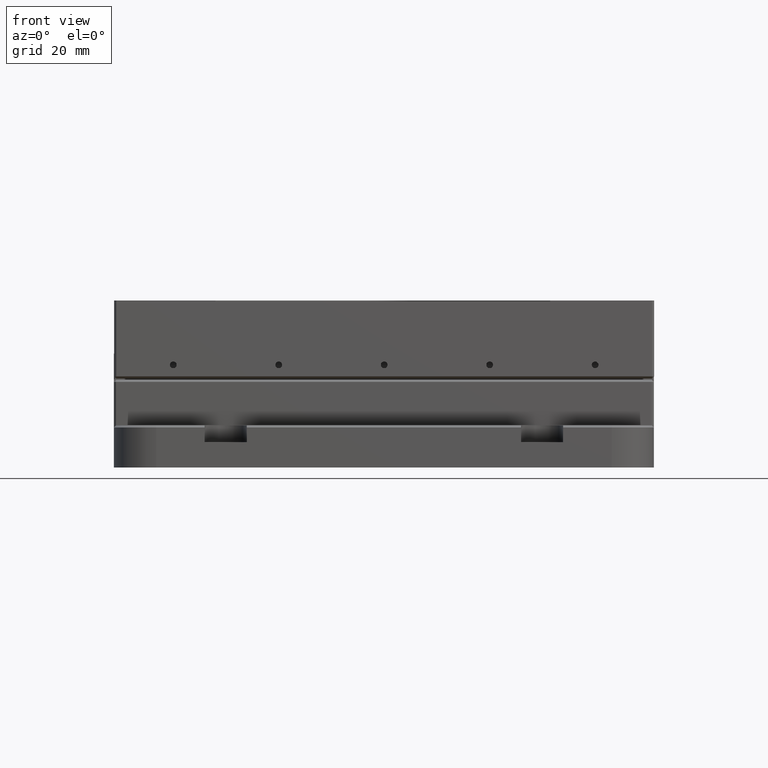
[diagram: clean part render]
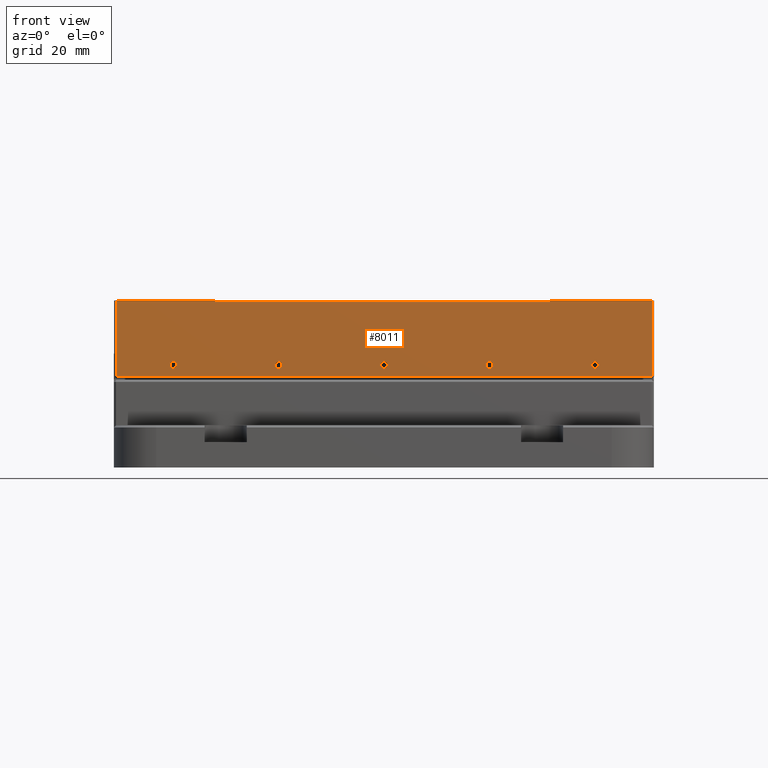
[diagram: same view with one face highlighted and labeled with its STEP entity id]
A machine part, front view. The second image highlights one B-rep face of the part: STEP entity #8011.
In plain terms, the highlighted planar face has unit normal (0, 1, -0).
Its self-contained STEP definition (entity closure, byte-faithful):
#81 = CARTESIAN_POINT ( 'NONE',  ( 30.95597744786982020, -54.84936401684889518, 91.40000005662446370 ) ) ;
#113 = EDGE_CURVE ( 'NONE', #45521, #45521, #68642, .T. ) ;
#573 = CARTESIAN_POINT ( 'NONE',  ( 134.3146317111067560, -54.84936401684890939, 109.2000000566243898 ) ) ;
#771 = CARTESIAN_POINT ( 'NONE',  ( 134.3146317111067560, -54.84936401684889518, 109.4000000566243926 ) ) ;
#1891 = VECTOR ( 'NONE', #25972, 1000.000000000000000 ) ;
#2496 = VECTOR ( 'NONE', #59618, 1000.000000000000000 ) ;
#2604 = DIRECTION ( 'NONE',  ( 1.000000000000000000, -1.665334536937734071E-16, -6.066855294798936708E-16 ) ) ;
#2670 = VERTEX_POINT ( 'NONE', #84288 ) ;
#3050 = EDGE_LOOP ( 'NONE', ( #21946 ) ) ;
#3495 = LINE ( 'NONE', #15720, #83530 ) ;
#4241 = EDGE_CURVE ( 'NONE', #2670, #46493, #14963, .T. ) ;
#4374 = CARTESIAN_POINT ( 'NONE',  ( 134.3146317111066992, -54.84936401684889518, 109.4000000566243926 ) ) ;
#4554 = EDGE_CURVE ( 'NONE', #9947, #15288, #79973, .T. ) ;
#5464 = CIRCLE ( 'NONE', #63422, 0.7999999999999951594 ) ;
#6098 = EDGE_CURVE ( 'NONE', #63532, #15288, #76224, .T. ) ;
#6311 = CARTESIAN_POINT ( 'NONE',  ( 31.45597744786982020, -54.84936401684889518, 91.40000005662446370 ) ) ;
#6899 = FACE_BOUND ( 'NONE', #67708, .T. ) ;
#7740 = DIRECTION ( 'NONE',  ( -1.665334536937734071E-16, -1.000000000000000000, -1.248069509703174129E-17 ) ) ;
#8011 = ADVANCED_FACE ( 'NONE', ( #27250, #27699, #76486, #48002, #6899, #14126 ), #62453, .F. ) ;
#8063 = EDGE_CURVE ( 'NONE', #36268, #46493, #16337, .T. ) ;
#8219 = DIRECTION ( 'NONE',  ( -6.066855294798937694E-16, -3.625946510601156007E-16, -1.000000000000000000 ) ) ;
#9947 = VERTEX_POINT ( 'NONE', #79863 ) ;
#10620 = EDGE_CURVE ( 'NONE', #30525, #30525, #15240, .T. ) ;
#11828 = DIRECTION ( 'NONE',  ( 1.000000000000000000, 0.000000000000000000, 0.000000000000000000 ) ) ;
#13307 = LINE ( 'NONE', #54415, #1891 ) ;
#13451 = CIRCLE ( 'NONE', #87033, 0.7999999999999951594 ) ;
#13871 = DIRECTION ( 'NONE',  ( 6.066855294798937694E-16, 3.625946510601156007E-16, 1.000000000000000000 ) ) ;
#14126 = FACE_BOUND ( 'NONE', #14379, .T. ) ;
#14379 = EDGE_LOOP ( 'NONE', ( #35155 ) ) ;
#14963 = LINE ( 'NONE', #81, #75501 ) ;
#15240 = CIRCLE ( 'NONE', #26768, 0.7999999999999951594 ) ;
#15288 = VERTEX_POINT ( 'NONE', #4374 ) ;
#15720 = CARTESIAN_POINT ( 'NONE',  ( 30.95597744786982020, -54.84936401684888096, 109.2000000566244609 ) ) ;
#16261 = EDGE_CURVE ( 'NONE', #9947, #2670, #45664, .T. ) ;
#16337 = LINE ( 'NONE', #65117, #56478 ) ;
#18650 = AXIS2_PLACEMENT_3D ( 'NONE', #60101, #60999, #73240 ) ;
#18842 = CARTESIAN_POINT ( 'NONE',  ( 95.75597744786981025, -54.84936401684889518, 94.10000005662440969 ) ) ;
#20682 = CARTESIAN_POINT ( 'NONE',  ( 94.95597744786982730, -54.84936401684889518, 94.10000005662440969 ) ) ;
#21946 = ORIENTED_EDGE ( 'NONE', *, *, #113, .F. ) ;
#22403 = CARTESIAN_POINT ( 'NONE',  ( 31.45597744786982020, -54.84936401684889518, 109.4000000566244495 ) ) ;
#23367 = DIRECTION ( 'NONE',  ( 1.000000000000000000, 0.000000000000000000, 0.000000000000000000 ) ) ;
#24163 = VERTEX_POINT ( 'NONE', #55144 ) ;
#25707 = ORIENTED_EDGE ( 'NONE', *, *, #4241, .F. ) ;
#25972 = DIRECTION ( 'NONE',  ( -1.000000000000000000, 1.665334536937734071E-16, 6.066855294798936708E-16 ) ) ;
#26215 = LINE ( 'NONE', #54190, #38163 ) ;
#26768 = AXIS2_PLACEMENT_3D ( 'NONE', #75542, #7740, #88642 ) ;
#26891 = VERTEX_POINT ( 'NONE', #48549 ) ;
#27250 = FACE_BOUND ( 'NONE', #3050, .T. ) ;
#27699 = FACE_OUTER_BOUND ( 'NONE', #80816, .T. ) ;
#30437 = CARTESIAN_POINT ( 'NONE',  ( 70.75597744786982446, -54.84936401684889518, 94.10000005662440969 ) ) ;
#30525 = VERTEX_POINT ( 'NONE', #66186 ) ;
#33555 = VERTEX_POINT ( 'NONE', #61552 ) ;
#35155 = ORIENTED_EDGE ( 'NONE', *, *, #82470, .F. ) ;
#36268 = VERTEX_POINT ( 'NONE', #22403 ) ;
#37253 = EDGE_LOOP ( 'NONE', ( #72092 ) ) ;
#38163 = VECTOR ( 'NONE', #66861, 1000.000000000000000 ) ;
#40568 = DIRECTION ( 'NONE',  ( -1.665334536937734071E-16, -1.000000000000000000, -1.248069509703174129E-17 ) ) ;
#41747 = ORIENTED_EDGE ( 'NONE', *, *, #75580, .F. ) ;
#43503 = VERTEX_POINT ( 'NONE', #73412 ) ;
#45521 = VERTEX_POINT ( 'NONE', #18842 ) ;
#45664 = LINE ( 'NONE', #54081, #63148 ) ;
#46493 = VERTEX_POINT ( 'NONE', #6311 ) ;
#47776 = DIRECTION ( 'NONE',  ( 1.000000000000000000, 0.000000000000000000, 0.000000000000000000 ) ) ;
#48002 = FACE_BOUND ( 'NONE', #37253, .T. ) ;
#48103 = VERTEX_POINT ( 'NONE', #30437 ) ;
#48549 = CARTESIAN_POINT ( 'NONE',  ( 45.75597744786981735, -54.84936401684889518, 94.10000005662442391 ) ) ;
#49556 = EDGE_LOOP ( 'NONE', ( #74457 ) ) ;
#50661 = CARTESIAN_POINT ( 'NONE',  ( 30.95597744786982020, -54.84936401684888096, 109.4000000566244495 ) ) ;
#52351 = EDGE_CURVE ( 'NONE', #24163, #36268, #13307, .T. ) ;
#54081 = CARTESIAN_POINT ( 'NONE',  ( 158.4559774478698273, -54.84936401684890939, 109.4000000566243784 ) ) ;
#54172 = EDGE_CURVE ( 'NONE', #24163, #43503, #26215, .T. ) ;
#54190 = CARTESIAN_POINT ( 'NONE',  ( 54.99113211498602993, -54.84936401684889518, 109.4000000566244353 ) ) ;
#54415 = CARTESIAN_POINT ( 'NONE',  ( 30.95597744786982020, -54.84936401684888096, 109.4000000566244495 ) ) ;
#55144 = CARTESIAN_POINT ( 'NONE',  ( 54.99113211498601572, -54.84936401684889518, 109.4000000566244353 ) ) ;
#56478 = VECTOR ( 'NONE', #70571, 1000.000000000000000 ) ;
#57275 = ORIENTED_EDGE ( 'NONE', *, *, #52351, .T. ) ;
#59618 = DIRECTION ( 'NONE',  ( -1.000000000000000000, 1.665334536937734071E-16, 6.066855294798936708E-16 ) ) ;
#60101 = CARTESIAN_POINT ( 'NONE',  ( 44.95597744786982020, -54.84936401684889518, 94.10000005662442391 ) ) ;
#60146 = DIRECTION ( 'NONE',  ( -1.665334536937734071E-16, -1.000000000000000000, -1.248069509703174129E-17 ) ) ;
#60999 = DIRECTION ( 'NONE',  ( -1.665334536937734071E-16, -1.000000000000000000, -1.248069509703174129E-17 ) ) ;
#61054 = CARTESIAN_POINT ( 'NONE',  ( 144.9559774478697989, -54.84936401684890939, 94.10000005662438127 ) ) ;
#61552 = CARTESIAN_POINT ( 'NONE',  ( 145.7559774478698102, -54.84936401684890939, 94.10000005662438127 ) ) ;
#61918 = CIRCLE ( 'NONE', #18650, 0.7999999999999951594 ) ;
#62453 = PLANE ( 'NONE',  #88213 ) ;
#62841 = AXIS2_PLACEMENT_3D ( 'NONE', #20682, #40568, #47776 ) ;
#62851 = DIRECTION ( 'NONE',  ( -1.000000000000000000, 1.665334536937734071E-16, 6.066855294798936708E-16 ) ) ;
#63148 = VECTOR ( 'NONE', #82575, 1000.000000000000000 ) ;
#63150 = CARTESIAN_POINT ( 'NONE',  ( 69.95597744786982730, -54.84936401684889518, 94.10000005662440969 ) ) ;
#63422 = AXIS2_PLACEMENT_3D ( 'NONE', #63150, #71240, #23367 ) ;
#63532 = VERTEX_POINT ( 'NONE', #573 ) ;
#65117 = CARTESIAN_POINT ( 'NONE',  ( 31.45597744786982020, -54.84936401684889518, 90.90000005662446370 ) ) ;
#66148 = ORIENTED_EDGE ( 'NONE', *, *, #16261, .F. ) ;
#66186 = CARTESIAN_POINT ( 'NONE',  ( 120.7559774478698102, -54.84936401684890939, 94.10000005662439548 ) ) ;
#66483 = ORIENTED_EDGE ( 'NONE', *, *, #10620, .F. ) ;
#66861 = DIRECTION ( 'NONE',  ( -6.066855294798937694E-16, -3.625946510601156007E-16, -1.000000000000000000 ) ) ;
#67708 = EDGE_LOOP ( 'NONE', ( #66483 ) ) ;
#68642 = CIRCLE ( 'NONE', #62841, 0.7999999999999951594 ) ;
#70571 = DIRECTION ( 'NONE',  ( -7.942232025584673441E-16, -1.750569779815340388E-16, -1.000000000000000000 ) ) ;
#71240 = DIRECTION ( 'NONE',  ( -1.665334536937734071E-16, -1.000000000000000000, -1.248069509703174129E-17 ) ) ;
#72092 = ORIENTED_EDGE ( 'NONE', *, *, #74391, .F. ) ;
#72848 = ORIENTED_EDGE ( 'NONE', *, *, #6098, .F. ) ;
#73240 = DIRECTION ( 'NONE',  ( 1.000000000000000000, 0.000000000000000000, 0.000000000000000000 ) ) ;
#73412 = CARTESIAN_POINT ( 'NONE',  ( 54.99113211498601572, -54.84936401684889518, 109.2000000566244466 ) ) ;
#73853 = ORIENTED_EDGE ( 'NONE', *, *, #54172, .F. ) ;
#73966 = EDGE_CURVE ( 'NONE', #26891, #26891, #61918, .T. ) ;
#74055 = CARTESIAN_POINT ( 'NONE',  ( 30.95597744786982020, -54.84936401684888096, 109.4000000566244495 ) ) ;
#74391 = EDGE_CURVE ( 'NONE', #48103, #48103, #5464, .T. ) ;
#74457 = ORIENTED_EDGE ( 'NONE', *, *, #73966, .F. ) ;
#75501 = VECTOR ( 'NONE', #62851, 1000.000000000000000 ) ;
#75542 = CARTESIAN_POINT ( 'NONE',  ( 119.9559774478698131, -54.84936401684890939, 94.10000005662439548 ) ) ;
#75580 = EDGE_CURVE ( 'NONE', #43503, #63532, #3495, .T. ) ;
#76224 = LINE ( 'NONE', #771, #77118 ) ;
#76486 = FACE_BOUND ( 'NONE', #49556, .T. ) ;
#77118 = VECTOR ( 'NONE', #13871, 1000.000000000000000 ) ;
#79777 = ORIENTED_EDGE ( 'NONE', *, *, #8063, .T. ) ;
#79863 = CARTESIAN_POINT ( 'NONE',  ( 158.4559774478698273, -54.84936401684890939, 109.4000000566243784 ) ) ;
#79973 = LINE ( 'NONE', #74055, #2496 ) ;
#80816 = EDGE_LOOP ( 'NONE', ( #73853, #57275, #79777, #25707, #66148, #87061, #72848, #41747 ) ) ;
#82470 = EDGE_CURVE ( 'NONE', #33555, #33555, #13451, .T. ) ;
#82575 = DIRECTION ( 'NONE',  ( -4.191478564013199482E-16, -1.750569779815340881E-16, -1.000000000000000000 ) ) ;
#83530 = VECTOR ( 'NONE', #2604, 1000.000000000000000 ) ;
#84288 = CARTESIAN_POINT ( 'NONE',  ( 158.4559774478698273, -54.84936401684890939, 91.40000005662439264 ) ) ;
#85455 = DIRECTION ( 'NONE',  ( 1.665334536937731852E-16, 1.000000000000000000, -3.625946510601156993E-16 ) ) ;
#87033 = AXIS2_PLACEMENT_3D ( 'NONE', #61054, #60146, #11828 ) ;
#87061 = ORIENTED_EDGE ( 'NONE', *, *, #4554, .T. ) ;
#88213 = AXIS2_PLACEMENT_3D ( 'NONE', #50661, #85455, #8219 ) ;
#88642 = DIRECTION ( 'NONE',  ( 1.000000000000000000, 0.000000000000000000, 0.000000000000000000 ) ) ;